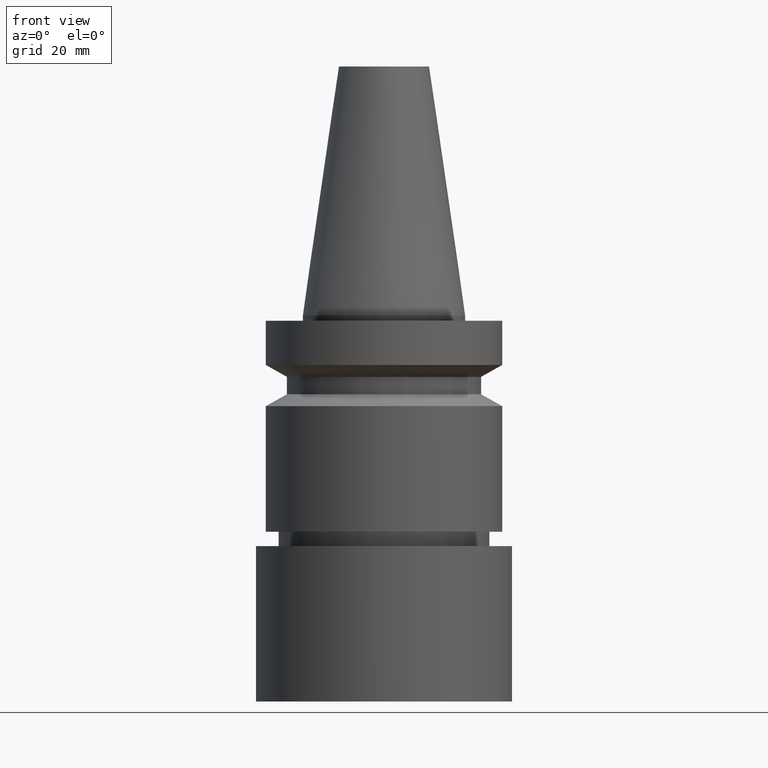
[diagram: clean part render]
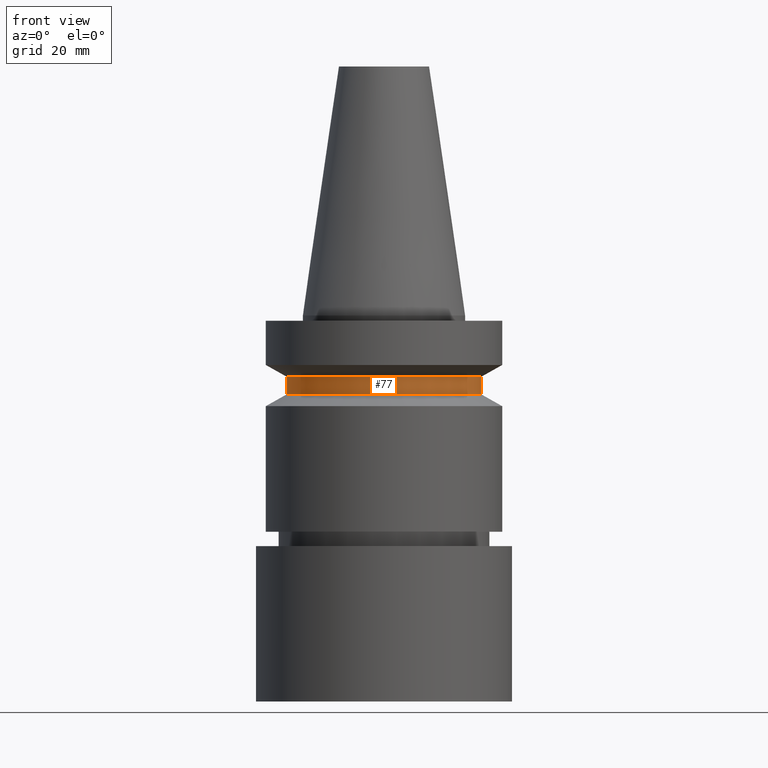
[diagram: same view with one face highlighted and labeled with its STEP entity id]
A machine part, front view. The second image highlights one B-rep face of the part: STEP entity #77.
In plain terms, the highlighted cylindrical surface (bore or boss wall) has radius 19 mm, axis along (0, 0, -1).
Its self-contained STEP definition (entity closure, byte-faithful):
#77=ADVANCED_FACE('Unnamed[1]',(#192,#193),#194,.T.);
#98=EDGE_CURVE('Unnamed[1]',#225,#225,#226,.T.);
#112=EDGE_CURVE('Unnamed[1]',#247,#247,#248,.T.);
#192=FACE_BOUND('',#347,.T.);
#193=FACE_BOUND('',#348,.T.);
#194=CYLINDRICAL_SURFACE('',#349,19.0);
#225=VERTEX_POINT('',#389);
#226=CIRCLE('',#390,19.0);
#247=VERTEX_POINT('',#417);
#248=CIRCLE('',#418,19.0);
#347=EDGE_LOOP('',(#518));
#348=EDGE_LOOP('',(#519));
#349=AXIS2_PLACEMENT_3D('',#520,#521,#522);
#389=CARTESIAN_POINT('',(7.29240495619202E-016,19.0,-11.90940108));
#390=AXIS2_PLACEMENT_3D('',#555,#556,#557);
#417=CARTESIAN_POINT('',(9.36279151221199E-016,19.0,-15.29059892));
#418=AXIS2_PLACEMENT_3D('',#579,#580,#581);
#518=ORIENTED_EDGE('',*,*,#112,.F.);
#519=ORIENTED_EDGE('',*,*,#98,.T.);
#520=CARTESIAN_POINT('',(8.32759823420201E-016,1.6655196468404E-015,-13.6));
#521=DIRECTION('',(6.12323399573677E-017,1.22464679914735E-016,-1.0));
#522=DIRECTION('',(-1.23259516440783E-032,1.0,1.22464679914735E-016));
#555=CARTESIAN_POINT('',(7.29240495619202E-016,1.4584809912384E-015,-11.90940108));
#556=DIRECTION('',(6.12323399573677E-017,1.22464679914735E-016,-1.0));
#557=DIRECTION('',(-1.23259516440783E-032,1.0,1.22464679914735E-016));
#579=CARTESIAN_POINT('',(9.36279151221199E-016,1.8725583024424E-015,-15.29059892));
#580=DIRECTION('',(6.12323399573677E-017,1.22464679914735E-016,-1.0));
#581=DIRECTION('',(-1.23259516440783E-032,1.0,1.22464679914735E-016));